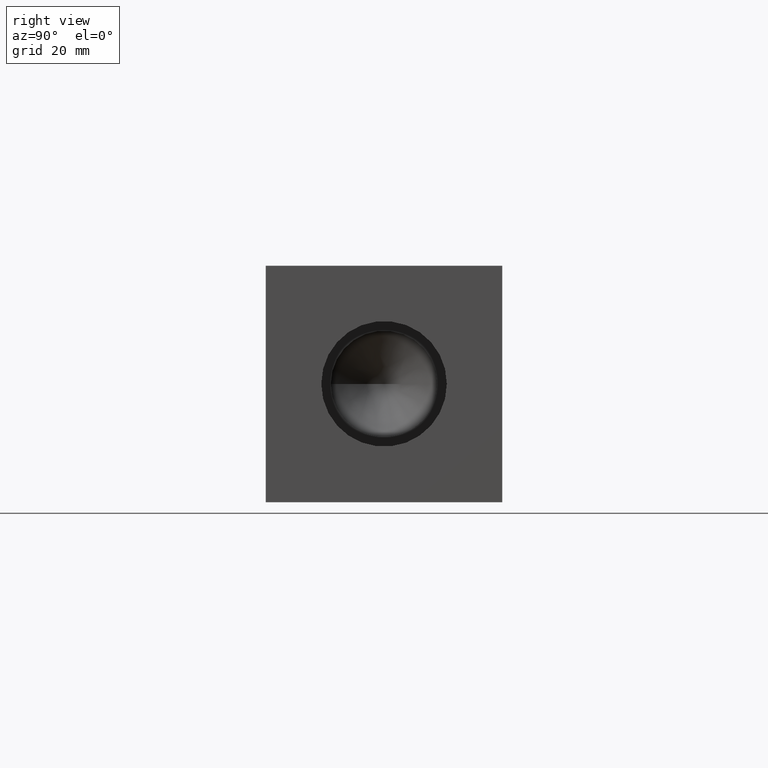
[diagram: clean part render]
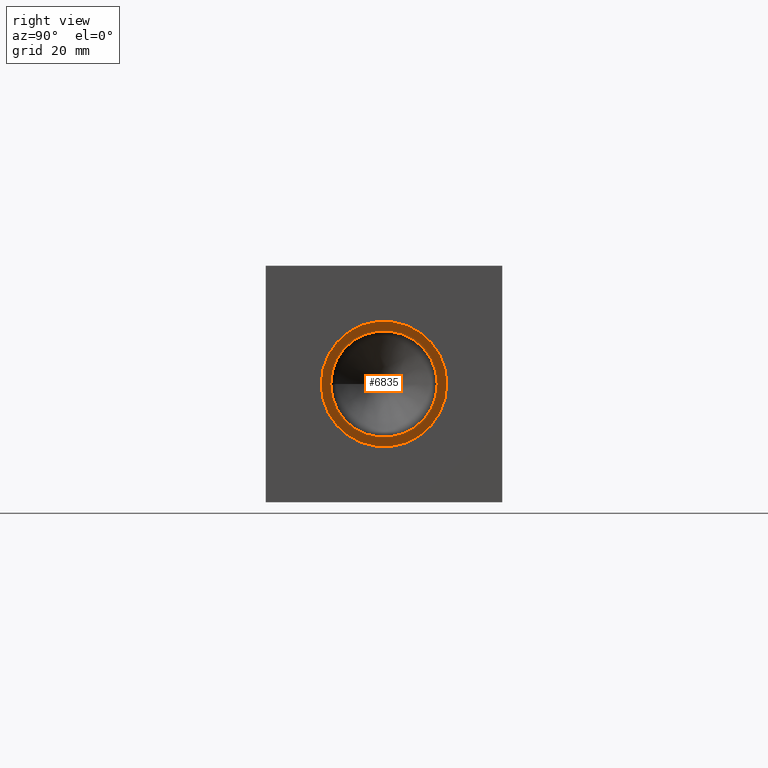
[diagram: same view with one face highlighted and labeled with its STEP entity id]
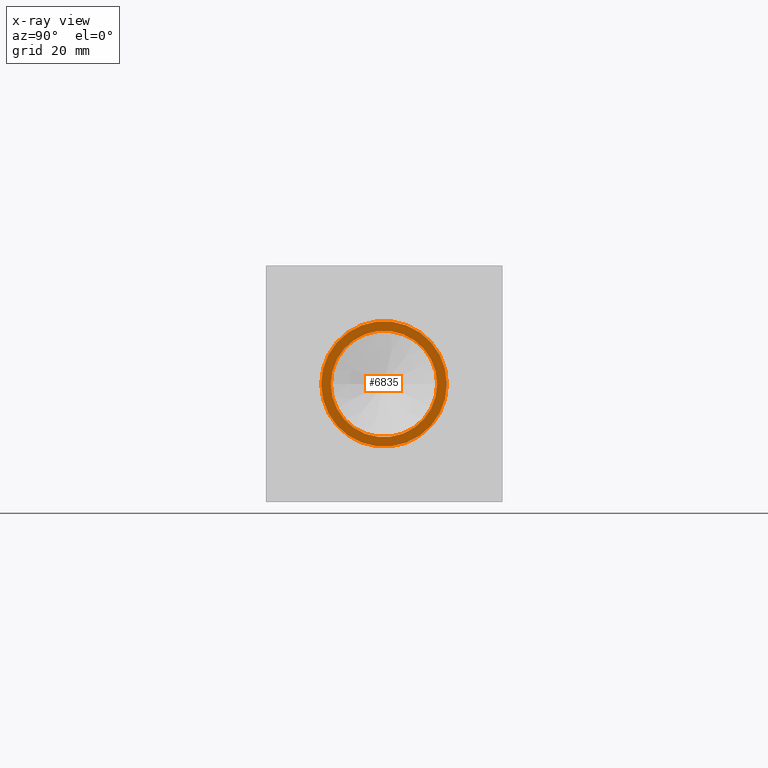
[diagram: x-ray of the same camera — body ghosted, the highlighted face saturated]
A machine part, right view. The second image highlights one B-rep face of the part: STEP entity #6835.
The next image is the same camera in x-ray: the body ghosted, the highlighted face saturated — about 0% of this face is hidden behind the body in this view.
In plain terms, the highlighted planar face has unit normal (1, 0, 0).
Its self-contained STEP definition (entity closure, byte-faithful):
#90=CIRCLE('',#7160,16.8529);
#91=CIRCLE('',#7161,16.8529);
#92=CIRCLE('',#7162,14.2875);
#137=FACE_BOUND('',#1092,.T.);
#375=PLANE('',#7159);
#713=FACE_OUTER_BOUND('',#1091,.T.);
#1091=EDGE_LOOP('',(#6053,#6054));
#1092=EDGE_LOOP('',(#6055));
#3305=VERTEX_POINT('',#11467);
#3306=VERTEX_POINT('',#11468);
#3307=VERTEX_POINT('',#11471);
#4231=EDGE_CURVE('',#3305,#3306,#90,.T.);
#4232=EDGE_CURVE('',#3306,#3305,#91,.T.);
#4233=EDGE_CURVE('',#3307,#3307,#92,.T.);
#6053=ORIENTED_EDGE('',*,*,#4231,.T.);
#6054=ORIENTED_EDGE('',*,*,#4232,.T.);
#6055=ORIENTED_EDGE('',*,*,#4233,.F.);
#6835=ADVANCED_FACE('',(#713,#137),#375,.T.);
#7159=AXIS2_PLACEMENT_3D('',#11466,#8473,#8474);
#7160=AXIS2_PLACEMENT_3D('',#11469,#8475,#8476);
#7161=AXIS2_PLACEMENT_3D('',#11470,#8477,#8478);
#7162=AXIS2_PLACEMENT_3D('',#11472,#8479,#8480);
#8473=DIRECTION('center_axis',(1.,0.,0.));
#8474=DIRECTION('ref_axis',(0.,1.,0.));
#8475=DIRECTION('center_axis',(1.,0.,0.));
#8476=DIRECTION('ref_axis',(0.,1.,0.));
#8477=DIRECTION('center_axis',(1.,0.,0.));
#8478=DIRECTION('ref_axis',(0.,1.,0.));
#8479=DIRECTION('center_axis',(1.,0.,0.));
#8480=DIRECTION('ref_axis',(0.,1.,0.));
#11466=CARTESIAN_POINT('Origin',(155.6258,31.75,31.75));
#11467=CARTESIAN_POINT('',(155.6258,48.6029,31.75));
#11468=CARTESIAN_POINT('',(155.6258,14.8971,31.75));
#11469=CARTESIAN_POINT('Origin',(155.6258,31.75,31.75));
#11470=CARTESIAN_POINT('Origin',(155.6258,31.75,31.75));
#11471=CARTESIAN_POINT('',(155.6258,17.4625,31.75));
#11472=CARTESIAN_POINT('Origin',(155.6258,31.75,31.75));